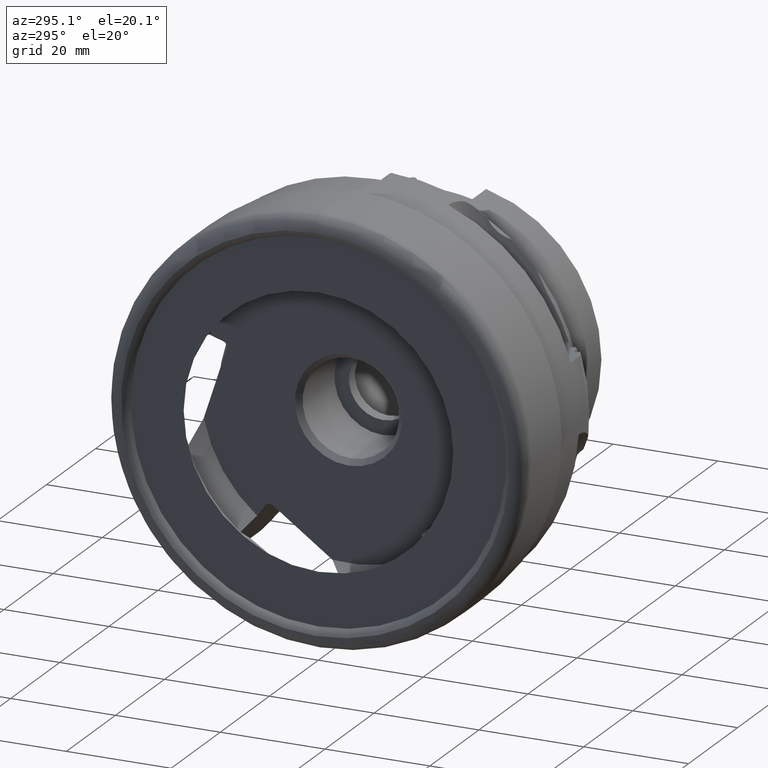
[diagram: clean part render]
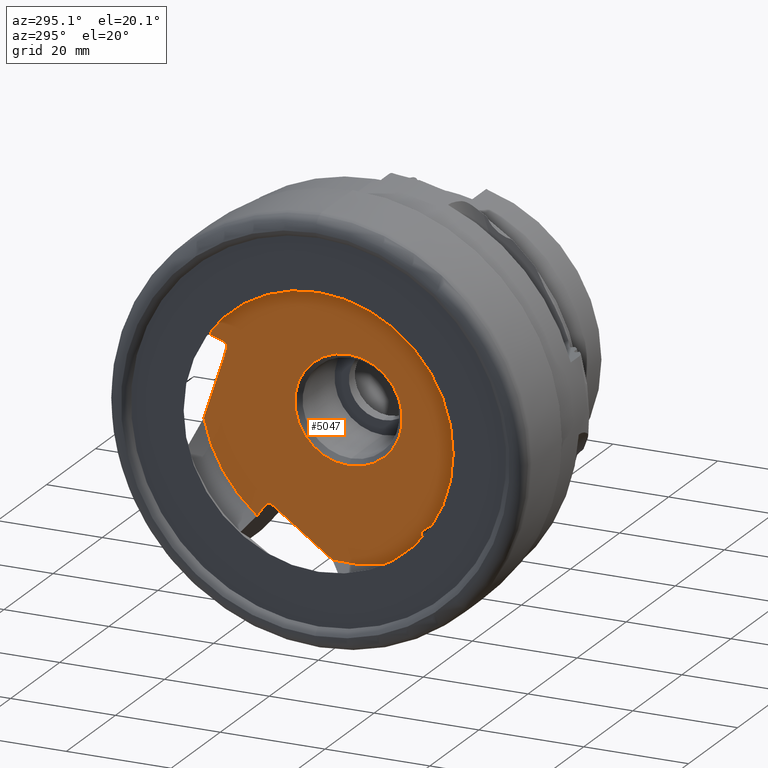
[diagram: same view with one face highlighted and labeled with its STEP entity id]
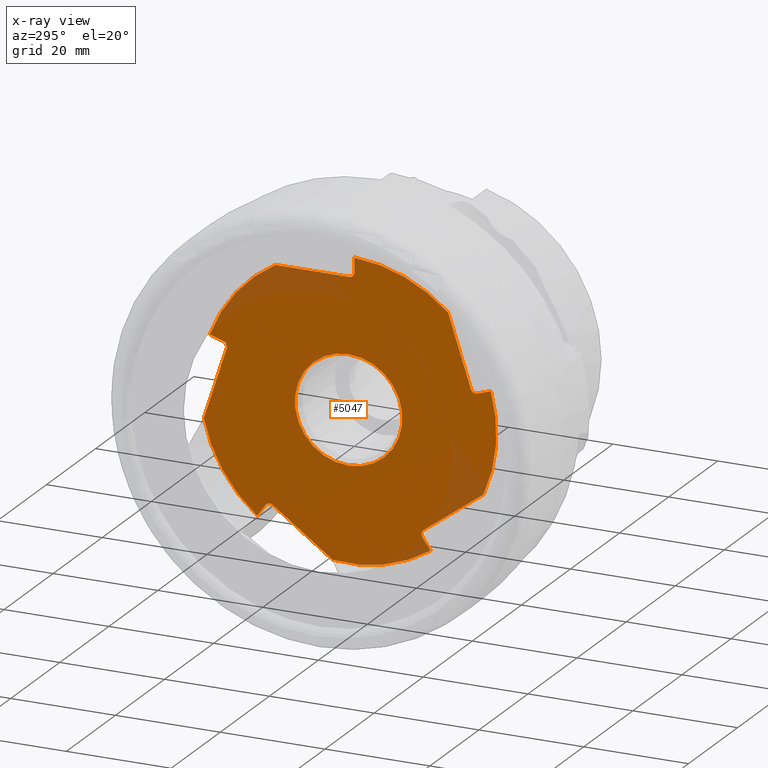
[diagram: x-ray of the same camera — body ghosted, the highlighted face saturated]
A machine part, auxiliary view. The second image highlights one B-rep face of the part: STEP entity #5047.
The next image is the same camera in x-ray: the body ghosted, the highlighted face saturated — about 8% of this face is hidden behind the body in this view.
In plain terms, the highlighted planar face has unit normal (1, 0, 0).
Its self-contained STEP definition (entity closure, byte-faithful):
#257 = EDGE_CURVE ( 'NONE', #6818, #6819, #753, .T. ) ;
#271 = EDGE_CURVE ( 'NONE', #6808, #6809, #765, .T. ) ;
#422 = AXIS2_PLACEMENT_3D ( 'NONE', #1851, #1774, #1772 ) ;
#428 = AXIS2_PLACEMENT_3D ( 'NONE', #1539, #1733, #1737 ) ;
#753 = CIRCLE ( 'NONE', #422, 1.000000000000000000 ) ;
#765 = CIRCLE ( 'NONE', #428, 1.000000000000000900 ) ;
#1118 = FACE_BOUND ( 'NONE', #6334, .T. ) ;
#1122 = FACE_OUTER_BOUND ( 'NONE', #6485, .T. ) ;
#1151 = CIRCLE ( 'NONE', #1946, 10.24999999999999300 ) ;
#1262 = LINE ( 'NONE', #2882, #1268 ) ;
#1264 = LINE ( 'NONE', #2889, #1270 ) ;
#1266 = LINE ( 'NONE', #2896, #1275 ) ;
#1267 = CIRCLE ( 'NONE', #1998, 28.22100000000000000 ) ;
#1268 = VECTOR ( 'NONE', #2883, 1000.000000000000100 ) ;
#1269 = CIRCLE ( 'NONE', #1999, 28.22100000000000000 ) ;
#1270 = VECTOR ( 'NONE', #2890, 1000.000000000000000 ) ;
#1271 = CIRCLE ( 'NONE', #2000, 10.24999999999999300 ) ;
#1272 = LINE ( 'NONE', #2884, #1273 ) ;
#1273 = VECTOR ( 'NONE', #2885, 1000.000000000000000 ) ;
#1274 = LINE ( 'NONE', #2901, #1280 ) ;
#1275 = VECTOR ( 'NONE', #2897, 1000.000000000000000 ) ;
#1276 = CIRCLE ( 'NONE', #2001, 1.000000000000000900 ) ;
#1277 = LINE ( 'NONE', #2891, #1278 ) ;
#1278 = VECTOR ( 'NONE', #2892, 1000.000000000000000 ) ;
#1279 = LINE ( 'NONE', #2906, #1283 ) ;
#1280 = VECTOR ( 'NONE', #2902, 1000.000000000000200 ) ;
#1281 = CIRCLE ( 'NONE', #2002, 1.000000000000000900 ) ;
#1282 = LINE ( 'NONE', #2911, #1286 ) ;
#1283 = VECTOR ( 'NONE', #2907, 1000.000000000000100 ) ;
#1284 = CIRCLE ( 'NONE', #2004, 28.22100000000000000 ) ;
#1285 = LINE ( 'NONE', #2916, #1289 ) ;
#1286 = VECTOR ( 'NONE', #2912, 1000.000000000000000 ) ;
#1287 = CIRCLE ( 'NONE', #2005, 1.000000000000000000 ) ;
#1288 = LINE ( 'NONE', #2921, #1291 ) ;
#1289 = VECTOR ( 'NONE', #2917, 1000.000000000000000 ) ;
#1290 = CIRCLE ( 'NONE', #2006, 28.22100000000000000 ) ;
#1291 = VECTOR ( 'NONE', #2922, 1000.000000000000100 ) ;
#1292 = CIRCLE ( 'NONE', #2007, 1.000000000000000900 ) ;
#1293 = CIRCLE ( 'NONE', #2008, 28.22100000000000000 ) ;
#1294 = CIRCLE ( 'NONE', #2003, 1.000000000000000000 ) ;
#1539 = CARTESIAN_POINT ( 'NONE',  ( 12.29999999999999900, 15.06942563289574500, -20.57115483133177500 ) ) ;
#1733 = DIRECTION ( 'NONE',  ( 1.000000000000000000, 0.0000000000000000000, 0.0000000000000000000 ) ) ;
#1737 = DIRECTION ( 'NONE',  ( 0.0000000000000000000, 0.0000000000000000000, -1.000000000000000000 ) ) ;
#1772 = DIRECTION ( 'NONE',  ( 0.0000000000000000000, 0.0000000000000000000, -1.000000000000000000 ) ) ;
#1774 = DIRECTION ( 'NONE',  ( 1.000000000000000000, 0.0000000000000000000, 0.0000000000000000000 ) ) ;
#1851 = CARTESIAN_POINT ( 'NONE',  ( 12.29999999999999900, 24.22103946608883300, 7.975039008190950800 ) ) ;
#1933 = AXIS2_PLACEMENT_3D ( 'NONE', #2268, #2270, #2271 ) ;
#1946 = AXIS2_PLACEMENT_3D ( 'NONE', #2356, #2357, #2358 ) ;
#1998 = AXIS2_PLACEMENT_3D ( 'NONE', #2867, #2874, #2875 ) ;
#1999 = AXIS2_PLACEMENT_3D ( 'NONE', #2870, #2877, #2878 ) ;
#2000 = AXIS2_PLACEMENT_3D ( 'NONE', #2873, #2880, #2881 ) ;
#2001 = AXIS2_PLACEMENT_3D ( 'NONE', #2876, #2887, #2888 ) ;
#2002 = AXIS2_PLACEMENT_3D ( 'NONE', #2879, #2894, #2895 ) ;
#2003 = AXIS2_PLACEMENT_3D ( 'NONE', #2923, #2928, #2929 ) ;
#2004 = AXIS2_PLACEMENT_3D ( 'NONE', #2886, #2899, #2900 ) ;
#2005 = AXIS2_PLACEMENT_3D ( 'NONE', #2893, #2904, #2905 ) ;
#2006 = AXIS2_PLACEMENT_3D ( 'NONE', #2898, #2909, #2910 ) ;
#2007 = AXIS2_PLACEMENT_3D ( 'NONE', #2903, #2914, #2915 ) ;
#2008 = AXIS2_PLACEMENT_3D ( 'NONE', #2908, #2919, #2920 ) ;
#2268 = CARTESIAN_POINT ( 'NONE',  ( 12.29999999999999900, 28.22100000000000000, 0.0000000000000000000 ) ) ;
#2269 = PLANE ( 'NONE',  #1933 ) ;
#2270 = DIRECTION ( 'NONE',  ( 1.000000000000000000, 0.0000000000000000000, 0.0000000000000000000 ) ) ;
#2271 = DIRECTION ( 'NONE',  ( 0.0000000000000000000, 0.0000000000000000000, -1.000000000000000000 ) ) ;
#2356 = CARTESIAN_POINT ( 'NONE',  ( 12.30000000000000100, 0.0000000000000000000, 0.0000000000000000000 ) ) ;
#2357 = DIRECTION ( 'NONE',  ( -1.000000000000000000, -0.0000000000000000000, -0.0000000000000000000 ) ) ;
#2358 = DIRECTION ( 'NONE',  ( 0.0000000000000000000, 0.0000000000000000000, 1.000000000000000000 ) ) ;
#2867 = CARTESIAN_POINT ( 'NONE',  ( 12.29999999999999700, 0.0000000000000000000, 0.0000000000000000000 ) ) ;
#2870 = CARTESIAN_POINT ( 'NONE',  ( 12.29999999999999700, 0.0000000000000000000, 0.0000000000000000000 ) ) ;
#2873 = CARTESIAN_POINT ( 'NONE',  ( 12.30000000000000100, 0.0000000000000000000, 0.0000000000000000000 ) ) ;
#2874 = DIRECTION ( 'NONE',  ( -1.000000000000000000, -0.0000000000000000000, -0.0000000000000000000 ) ) ;
#2875 = DIRECTION ( 'NONE',  ( 0.0000000000000000000, 0.0000000000000000000, 1.000000000000000000 ) ) ;
#2876 = CARTESIAN_POINT ( 'NONE',  ( 12.29999999999999900, 15.06942563289574500, -20.57115483133177500 ) ) ;
#2877 = DIRECTION ( 'NONE',  ( -1.000000000000000000, -0.0000000000000000000, -0.0000000000000000000 ) ) ;
#2878 = DIRECTION ( 'NONE',  ( 0.0000000000000000000, 0.0000000000000000000, 1.000000000000000000 ) ) ;
#2879 = CARTESIAN_POINT ( 'NONE',  ( 12.29999999999999900, -14.90762223402044900, -20.68871188179048900 ) ) ;
#2880 = DIRECTION ( 'NONE',  ( -1.000000000000000000, -0.0000000000000000000, -0.0000000000000000000 ) ) ;
#2881 = DIRECTION ( 'NONE',  ( 0.0000000000000000000, 0.0000000000000000000, 1.000000000000000000 ) ) ;
#2882 = CARTESIAN_POINT ( 'NONE',  ( 12.29999999999999900, 25.99575035010367300, -0.7230274402867231700 ) ) ;
#2883 = DIRECTION ( 'NONE',  ( 0.0000000000000000000, -0.3090169943749582800, 0.9510565162951499800 ) ) ;
#2884 = CARTESIAN_POINT ( 'NONE',  ( 12.29999999999999900, 10.64003439468497800, -12.77331919566111100 ) ) ;
#2885 = DIRECTION ( 'NONE',  ( 0.0000000000000000000, -0.5877852522924802400, 0.8090169943749422300 ) ) ;
#2886 = CARTESIAN_POINT ( 'NONE',  ( 12.29999999999999700, 0.0000000000000000000, 0.0000000000000000000 ) ) ;
#2887 = DIRECTION ( 'NONE',  ( 1.000000000000000000, 0.0000000000000000000, 0.0000000000000000000 ) ) ;
#2888 = DIRECTION ( 'NONE',  ( 0.0000000000000000000, 0.0000000000000000000, -1.000000000000000000 ) ) ;
#2889 = CARTESIAN_POINT ( 'NONE',  ( 12.29999999999999900, 10.64003439468459800, 12.77331919566099900 ) ) ;
#2890 = DIRECTION ( 'NONE',  ( 0.0000000000000000000, 0.5877852522924685900, 0.8090169943749507800 ) ) ;
#2891 = CARTESIAN_POINT ( 'NONE',  ( 12.29999999999999900, 32.87162298029322500, -6.401033389003247400 ) ) ;
#2892 = DIRECTION ( 'NONE',  ( 0.0000000000000000000, 0.8090169943749422300, 0.5877852522924802400 ) ) ;
#2893 = CARTESIAN_POINT ( 'NONE',  ( 12.29999999999999900, -24.28284286496393900, 7.784827704931576200 ) ) ;
#2894 = DIRECTION ( 'NONE',  ( 1.000000000000000000, 0.0000000000000000000, 0.0000000000000000000 ) ) ;
#2895 = DIRECTION ( 'NONE',  ( 0.0000000000000000000, 0.0000000000000000000, -1.000000000000000000 ) ) ;
#2896 = CARTESIAN_POINT ( 'NONE',  ( 12.29999999999999900, 4.070145617962365800, -33.24079933536901200 ) ) ;
#2897 = DIRECTION ( 'NONE',  ( 0.0000000000000000000, 0.8090169943749507800, -0.5877852522924685900 ) ) ;
#2898 = CARTESIAN_POINT ( 'NONE',  ( 12.29999999999999700, 0.0000000000000000000, 0.0000000000000000000 ) ) ;
#2899 = DIRECTION ( 'NONE',  ( -1.000000000000000000, -0.0000000000000000000, -0.0000000000000000000 ) ) ;
#2900 = DIRECTION ( 'NONE',  ( 0.0000000000000000000, 0.0000000000000000000, 1.000000000000000000 ) ) ;
#2901 = CARTESIAN_POINT ( 'NONE',  ( 12.29999999999999900, 25.18621560531530400, -9.340105970397546600 ) ) ;
#2902 = DIRECTION ( 'NONE',  ( 0.0000000000000000000, 0.9510565162951544200, -0.3090169943749446200 ) ) ;
#2903 = CARTESIAN_POINT ( 'NONE',  ( 12.29999999999999900, -0.1000000000000015000, 25.50000000000000400 ) ) ;
#2904 = DIRECTION ( 'NONE',  ( 1.000000000000000000, 0.0000000000000000000, 0.0000000000000000000 ) ) ;
#2905 = DIRECTION ( 'NONE',  ( 0.0000000000000000000, 0.0000000000000000000, -1.000000000000000000 ) ) ;
#2906 = CARTESIAN_POINT ( 'NONE',  ( 12.29999999999999900, -20.60601894835902900, 15.86486016465902400 ) ) ;
#2907 = DIRECTION ( 'NONE',  ( 0.0000000000000000000, -0.3090169943749446800, -0.9510565162951544200 ) ) ;
#2908 = CARTESIAN_POINT ( 'NONE',  ( 12.29999999999999700, 0.0000000000000000000, 0.0000000000000000000 ) ) ;
#2909 = DIRECTION ( 'NONE',  ( -1.000000000000000000, -0.0000000000000000000, -0.0000000000000000000 ) ) ;
#2910 = DIRECTION ( 'NONE',  ( 0.0000000000000000000, 0.0000000000000000000, 1.000000000000000000 ) ) ;
#2911 = CARTESIAN_POINT ( 'NONE',  ( 12.29999999999999900, -1.099999999999996800, -1.795334145021296100E-015 ) ) ;
#2912 = DIRECTION ( 'NONE',  ( 0.0000000000000000000, 6.123031769111886300E-017, -1.000000000000000000 ) ) ;
#2914 = DIRECTION ( 'NONE',  ( 1.000000000000000000, 0.0000000000000000000, 0.0000000000000000000 ) ) ;
#2915 = DIRECTION ( 'NONE',  ( 0.0000000000000000000, 0.0000000000000000000, -1.000000000000000000 ) ) ;
#2916 = CARTESIAN_POINT ( 'NONE',  ( 12.29999999999999900, 28.22100000000000000, 24.50000000000000400 ) ) ;
#2917 = DIRECTION ( 'NONE',  ( 0.0000000000000000000, -1.000000000000000000, -6.123031769111886300E-017 ) ) ;
#2919 = DIRECTION ( 'NONE',  ( -1.000000000000000000, -0.0000000000000000000, -0.0000000000000000000 ) ) ;
#2920 = DIRECTION ( 'NONE',  ( 0.0000000000000000000, 0.0000000000000000000, 1.000000000000000000 ) ) ;
#2921 = CARTESIAN_POINT ( 'NONE',  ( 12.29999999999999900, 25.18621560531505200, 9.340105970397869900 ) ) ;
#2922 = DIRECTION ( 'NONE',  ( 0.0000000000000000000, -0.9510565162951499800, -0.3090169943749582800 ) ) ;
#2923 = CARTESIAN_POINT ( 'NONE',  ( 12.29999999999999900, 24.22103946608883300, 7.975039008190950800 ) ) ;
#2928 = DIRECTION ( 'NONE',  ( 1.000000000000000000, 0.0000000000000000000, 0.0000000000000000000 ) ) ;
#2929 = DIRECTION ( 'NONE',  ( 0.0000000000000000000, 0.0000000000000000000, -1.000000000000000000 ) ) ;
#3538 = CARTESIAN_POINT ( 'NONE',  ( 12.29999999999999500, -15.68536321859887300, -23.46048212847778900 ) ) ;
#3539 = CARTESIAN_POINT ( 'NONE',  ( 12.29999999999999900, 23.26998294979368300, 7.666022013815993600 ) ) ;
#3542 = CARTESIAN_POINT ( 'NONE',  ( 12.29999999999999900, 3.069450123861264600, -28.05357939616847000 ) ) ;
#3543 = CARTESIAN_POINT ( 'NONE',  ( 12.29999999999999900, 14.48164038060326900, -19.76213783695683500 ) ) ;
#3544 = CARTESIAN_POINT ( 'NONE',  ( 12.29999999999999500, 17.46520060622409100, -22.16735457343410300 ) ) ;
#3546 = CARTESIAN_POINT ( 'NONE',  ( 12.29999999999999900, 27.62905174178891700, -5.749812244721635300 ) ) ;
#3731 = CARTESIAN_POINT ( 'NONE',  ( 12.30000000000000100, 0.0000000000000000000, 10.24999999999999300 ) ) ;
#3732 = CARTESIAN_POINT ( 'NONE',  ( 12.30000000000000100, 1.255262969126036500E-015, -10.24999999999999300 ) ) ;
#3765 = CARTESIAN_POINT ( 'NONE',  ( 12.29999999999999900, 15.87844262727068700, -19.98336957903929800 ) ) ;
#3766 = CARTESIAN_POINT ( 'NONE',  ( 12.29999999999999900, 15.06942563289574400, -19.57115483133177500 ) ) ;
#3775 = CARTESIAN_POINT ( 'NONE',  ( 12.29999999999999900, 23.91202247171387500, 8.926095524486102700 ) ) ;
#3776 = CARTESIAN_POINT ( 'NONE',  ( 12.29999999999999900, 23.22103946608883300, 7.975039008190950800 ) ) ;
#3904 = CARTESIAN_POINT ( 'NONE',  ( 12.29999999999999900, -14.09860523964550100, -21.27649713408295900 ) ) ;
#3905 = CARTESIAN_POINT ( 'NONE',  ( 12.29999999999999900, -14.31983698172798600, -19.87969488741554300 ) ) ;
#3906 = CARTESIAN_POINT ( 'NONE',  ( 12.30000000000000600, -25.73202723847010300, -11.58825332820406500 ) ) ;
#3907 = CARTESIAN_POINT ( 'NONE',  ( 12.29999999999999900, -0.1000000000000028600, 24.50000000000000400 ) ) ;
#3908 = CARTESIAN_POINT ( 'NONE',  ( 12.29999999999999700, 14.00624292949396800, 24.50000000000000400 ) ) ;
#3909 = CARTESIAN_POINT ( 'NONE',  ( 12.29999999999999900, -1.099999999999998300, 25.50000000000000400 ) ) ;
#3910 = CARTESIAN_POINT ( 'NONE',  ( 12.29999999999999900, -23.33178634866878200, 7.475810710556626900 ) ) ;
#3911 = CARTESIAN_POINT ( 'NONE',  ( 12.30000000000000100, -18.97271755667375000, 20.89164496909431200 ) ) ;
#3912 = CARTESIAN_POINT ( 'NONE',  ( 12.29999999999999700, -1.100000000000001900, 28.19955391491149400 ) ) ;
#3913 = CARTESIAN_POINT ( 'NONE',  ( 12.29999999999999700, -27.15928820120554500, 7.667979225575481700 ) ) ;
#3914 = CARTESIAN_POINT ( 'NONE',  ( 12.29999999999999900, -24.59185985933887900, 6.833771188636419900 ) ) ;
#3990 = CARTESIAN_POINT ( 'NONE',  ( 12.29999999999999500, 26.47945081358052700, 9.760303561425201800 ) ) ;
#5047 = ADVANCED_FACE ( 'NONE', ( #1118, #1122 ), #2269, .F. ) ;
#5074 = EDGE_CURVE ( 'NONE', #6775, #6774, #1151, .T. ) ;
#5193 = EDGE_CURVE ( 'NONE', #6721, #6718, #1267, .T. ) ;
#5194 = EDGE_CURVE ( 'NONE', #6716, #6715, #1269, .T. ) ;
#5195 = EDGE_CURVE ( 'NONE', #6774, #6775, #1271, .T. ) ;
#5196 = EDGE_CURVE ( 'NONE', #6721, #6719, #1262, .T. ) ;
#5197 = EDGE_CURVE ( 'NONE', #6718, #6808, #1272, .T. ) ;
#5198 = EDGE_CURVE ( 'NONE', #6809, #6717, #1276, .T. ) ;
#5199 = EDGE_CURVE ( 'NONE', #6715, #6950, #1264, .T. ) ;
#5200 = EDGE_CURVE ( 'NONE', #6716, #6717, #1277, .T. ) ;
#5201 = EDGE_CURVE ( 'NONE', #6950, #6951, #1281, .T. ) ;
#5202 = EDGE_CURVE ( 'NONE', #6952, #6951, #1266, .T. ) ;
#5203 = EDGE_CURVE ( 'NONE', #6952, #6959, #1284, .T. ) ;
#5204 = EDGE_CURVE ( 'NONE', #6959, #6960, #1274, .T. ) ;
#5205 = EDGE_CURVE ( 'NONE', #6960, #6956, #1287, .T. ) ;
#5206 = EDGE_CURVE ( 'NONE', #6957, #6956, #1279, .T. ) ;
#5207 = EDGE_CURVE ( 'NONE', #6957, #6958, #1290, .T. ) ;
#5208 = EDGE_CURVE ( 'NONE', #6958, #6955, #1282, .T. ) ;
#5209 = EDGE_CURVE ( 'NONE', #6955, #6953, #1292, .T. ) ;
#5210 = EDGE_CURVE ( 'NONE', #6954, #6953, #1285, .T. ) ;
#5211 = EDGE_CURVE ( 'NONE', #6954, #7036, #1293, .T. ) ;
#5212 = EDGE_CURVE ( 'NONE', #7036, #6818, #1288, .T. ) ;
#5214 = EDGE_CURVE ( 'NONE', #6819, #6719, #1294, .T. ) ;
#5633 = ORIENTED_EDGE ( 'NONE', *, *, #5195, .F. ) ;
#5634 = ORIENTED_EDGE ( 'NONE', *, *, #5074, .F. ) ;
#5635 = ORIENTED_EDGE ( 'NONE', *, *, #5196, .F. ) ;
#5636 = ORIENTED_EDGE ( 'NONE', *, *, #5193, .T. ) ;
#5637 = ORIENTED_EDGE ( 'NONE', *, *, #5197, .T. ) ;
#5638 = ORIENTED_EDGE ( 'NONE', *, *, #271, .T. ) ;
#5639 = ORIENTED_EDGE ( 'NONE', *, *, #5198, .T. ) ;
#5640 = ORIENTED_EDGE ( 'NONE', *, *, #5200, .F. ) ;
#5641 = ORIENTED_EDGE ( 'NONE', *, *, #5194, .T. ) ;
#5642 = ORIENTED_EDGE ( 'NONE', *, *, #5199, .T. ) ;
#5643 = ORIENTED_EDGE ( 'NONE', *, *, #5201, .T. ) ;
#5644 = ORIENTED_EDGE ( 'NONE', *, *, #5202, .F. ) ;
#5645 = ORIENTED_EDGE ( 'NONE', *, *, #5203, .T. ) ;
#5646 = ORIENTED_EDGE ( 'NONE', *, *, #5204, .T. ) ;
#5647 = ORIENTED_EDGE ( 'NONE', *, *, #5205, .T. ) ;
#5648 = ORIENTED_EDGE ( 'NONE', *, *, #5206, .F. ) ;
#5649 = ORIENTED_EDGE ( 'NONE', *, *, #5207, .T. ) ;
#5650 = ORIENTED_EDGE ( 'NONE', *, *, #5208, .T. ) ;
#5651 = ORIENTED_EDGE ( 'NONE', *, *, #5209, .T. ) ;
#5652 = ORIENTED_EDGE ( 'NONE', *, *, #5210, .F. ) ;
#5653 = ORIENTED_EDGE ( 'NONE', *, *, #5211, .T. ) ;
#5654 = ORIENTED_EDGE ( 'NONE', *, *, #5212, .T. ) ;
#5655 = ORIENTED_EDGE ( 'NONE', *, *, #257, .T. ) ;
#5656 = ORIENTED_EDGE ( 'NONE', *, *, #5214, .T. ) ;
#6334 = EDGE_LOOP ( 'NONE', ( #5633, #5634 ) ) ;
#6485 = EDGE_LOOP ( 'NONE', ( #5635, #5636, #5637, #5638, #5639, #5640, #5641, #5642, #5643, #5644, #5645, #5646, #5647, #5648, #5649, #5650, #5651, #5652, #5653, #5654, #5655, #5656 ) ) ;
#6715 = VERTEX_POINT ( 'NONE', #3538 ) ;
#6716 = VERTEX_POINT ( 'NONE', #3542 ) ;
#6717 = VERTEX_POINT ( 'NONE', #3543 ) ;
#6718 = VERTEX_POINT ( 'NONE', #3544 ) ;
#6719 = VERTEX_POINT ( 'NONE', #3539 ) ;
#6721 = VERTEX_POINT ( 'NONE', #3546 ) ;
#6774 = VERTEX_POINT ( 'NONE', #3731 ) ;
#6775 = VERTEX_POINT ( 'NONE', #3732 ) ;
#6808 = VERTEX_POINT ( 'NONE', #3765 ) ;
#6809 = VERTEX_POINT ( 'NONE', #3766 ) ;
#6818 = VERTEX_POINT ( 'NONE', #3775 ) ;
#6819 = VERTEX_POINT ( 'NONE', #3776 ) ;
#6950 = VERTEX_POINT ( 'NONE', #3904 ) ;
#6951 = VERTEX_POINT ( 'NONE', #3905 ) ;
#6952 = VERTEX_POINT ( 'NONE', #3906 ) ;
#6953 = VERTEX_POINT ( 'NONE', #3907 ) ;
#6954 = VERTEX_POINT ( 'NONE', #3908 ) ;
#6955 = VERTEX_POINT ( 'NONE', #3909 ) ;
#6956 = VERTEX_POINT ( 'NONE', #3910 ) ;
#6957 = VERTEX_POINT ( 'NONE', #3911 ) ;
#6958 = VERTEX_POINT ( 'NONE', #3912 ) ;
#6959 = VERTEX_POINT ( 'NONE', #3913 ) ;
#6960 = VERTEX_POINT ( 'NONE', #3914 ) ;
#7036 = VERTEX_POINT ( 'NONE', #3990 ) ;